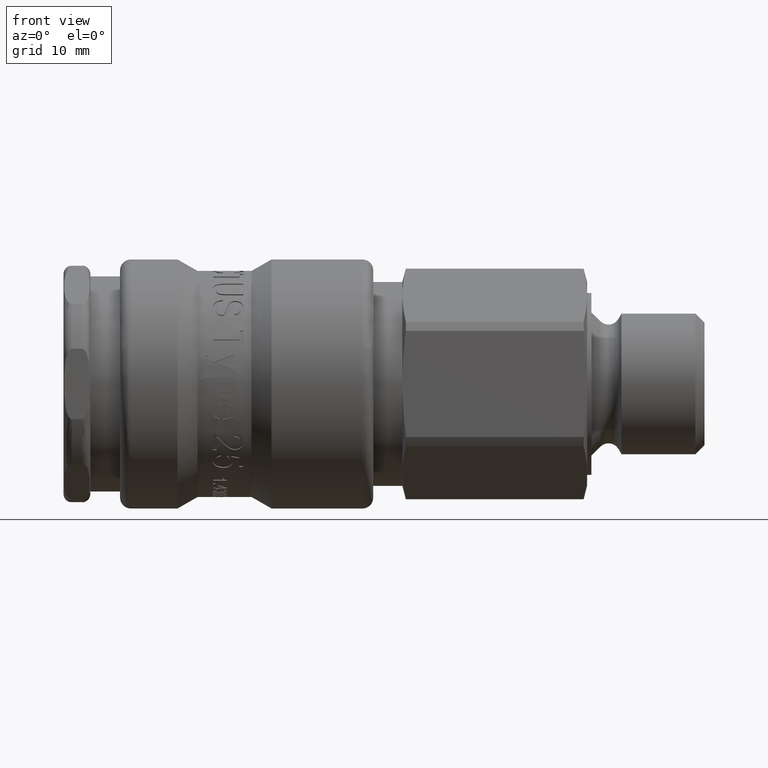
[diagram: clean part render]
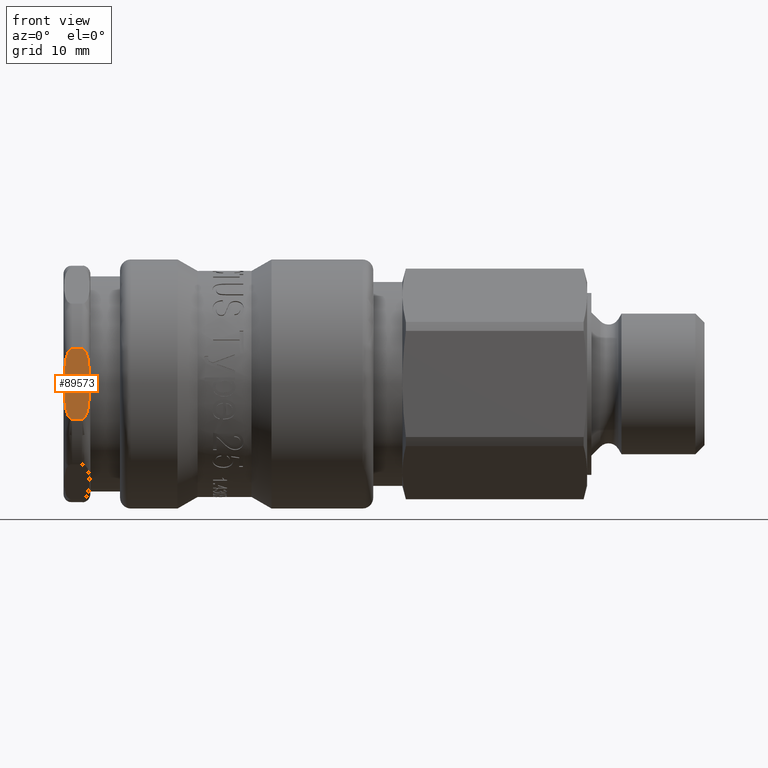
[diagram: same view with one face highlighted and labeled with its STEP entity id]
A machine part, front view. The second image highlights one B-rep face of the part: STEP entity #89573.
In plain terms, the highlighted planar face has unit normal (0, 1, 0).
Its self-contained STEP definition (entity closure, byte-faithful):
#89088=CARTESIAN_POINT('',(0.799999999999998,-10.500000000000004,-3.278719262150994));
#89089=VERTEX_POINT('',#89088);
#89097=CARTESIAN_POINT('',(0.799999999999998,-10.500000000000004,3.278719262150998));
#89098=VERTEX_POINT('',#89097);
#89099=CARTESIAN_POINT('',(0.799999999999998,-10.500000000000004,-3.278719262150994));
#89100=CARTESIAN_POINT('',(0.777895532084728,-10.500000000000004,-3.278719262150994));
#89101=CARTESIAN_POINT('',(0.75166561780548,-10.500000000000004,-3.274771300712465));
#89102=CARTESIAN_POINT('',(0.706034173954641,-10.500000000000004,-3.2613745990915));
#89103=CARTESIAN_POINT('',(0.678365053849381,-10.500000000000004,-3.248439310874959));
#89104=CARTESIAN_POINT('',(0.589002555618165,-10.500000000000004,-3.193187925023121));
#89105=CARTESIAN_POINT('',(0.527394977988849,-10.5,-3.120173886764246));
#89106=CARTESIAN_POINT('',(0.39676149208023,-10.5,-2.919047819138346));
#89107=CARTESIAN_POINT('',(0.330435911178499,-10.5,-2.738591631614819));
#89108=CARTESIAN_POINT('',(0.174245442307713,-10.5,-2.191493105213068));
#89109=CARTESIAN_POINT('',(0.126032054088558,-10.5,-1.749150668261573));
#89110=CARTESIAN_POINT('',(0.06664131136934,-10.5,-0.857870751619868));
#89111=CARTESIAN_POINT('',(0.058380151290432,-10.5,-0.408741346034068));
#89112=CARTESIAN_POINT('',(0.058380151290432,-10.5,1.748601E-015));
#89113=CARTESIAN_POINT('',(0.058380151290432,-10.5,0.408741346034072));
#89114=CARTESIAN_POINT('',(0.06664131136934,-10.5,0.857870751619872));
#89115=CARTESIAN_POINT('',(0.126032054088558,-10.5,1.749150668261577));
#89116=CARTESIAN_POINT('',(0.174245442307713,-10.5,2.191493105213072));
#89117=CARTESIAN_POINT('',(0.330435911178499,-10.5,2.738591631614822));
#89118=CARTESIAN_POINT('',(0.39676149208023,-10.5,2.91904781913835));
#89119=CARTESIAN_POINT('',(0.527394977988849,-10.5,3.12017388676425));
#89120=CARTESIAN_POINT('',(0.589002555618165,-10.500000000000004,3.193187925023124));
#89121=CARTESIAN_POINT('',(0.678365053849381,-10.500000000000004,3.248439310874962));
#89122=CARTESIAN_POINT('',(0.706034173954641,-10.500000000000004,3.261374599091504));
#89123=CARTESIAN_POINT('',(0.75166561780548,-10.500000000000004,3.274771300712468));
#89124=CARTESIAN_POINT('',(0.777895532084728,-10.5,3.278719262151005));
#89125=CARTESIAN_POINT('',(0.799999999999998,-10.5,3.278719262151005));
#89126=B_SPLINE_CURVE_WITH_KNOTS('',3,(#89099,#89100,#89101,#89102,#89103,#89104,#89105,#89106,#89107,#89108,#89109,#89110,#89111,#89112,#89113,#89114,#89115,#89116,#89117,#89118,#89119,#89120,#89121,#89122,#89123,#89124,#89125),.UNSPECIFIED.,.F.,.U.,(4,2,2,2,2,2,3,2,2,2,2,2,4),(-0.331459991565857,-0.324828651191276,-0.317192790529879,-0.293309554510366,-0.245244807620442,-0.122622403810221,0.0,0.122622403810221,0.245244807620442,0.293309554510366,0.317192790529879,0.324828651191276,0.331459991565857),.UNSPECIFIED.);
#89127=EDGE_CURVE('',#89089,#89098,#89126,.T.);
#89242=CARTESIAN_POINT('',(1.7,-10.500000000000004,-3.278719262150994));
#89243=VERTEX_POINT('',#89242);
#89251=CARTESIAN_POINT('',(1.7,-10.500000000000004,-3.278719262150994));
#89252=DIRECTION('',(-1.0,0.0,0.0));
#89253=VECTOR('',#89252,0.900000000000002);
#89254=LINE('',#89251,#89253);
#89255=EDGE_CURVE('',#89243,#89089,#89254,.T.);
#89266=CARTESIAN_POINT('',(1.7,-10.500000000000004,3.278719262150998));
#89267=VERTEX_POINT('',#89266);
#89268=CARTESIAN_POINT('',(0.799999999999998,-10.500000000000004,3.278719262150998));
#89269=DIRECTION('',(1.0,0.0,0.0));
#89270=VECTOR('',#89269,0.900000000000002);
#89271=LINE('',#89268,#89270);
#89272=EDGE_CURVE('',#89098,#89267,#89271,.T.);
#89472=CARTESIAN_POINT('',(1.7,-10.5,3.278719262151005));
#89473=CARTESIAN_POINT('',(1.722104467915271,-10.5,3.278719262151005));
#89474=CARTESIAN_POINT('',(1.748334382194518,-10.500000000000004,3.274771300712468));
#89475=CARTESIAN_POINT('',(1.793965826045357,-10.500000000000004,3.261374599091504));
#89476=CARTESIAN_POINT('',(1.821634946150617,-10.500000000000004,3.248439310874962));
#89477=CARTESIAN_POINT('',(1.910997444381834,-10.500000000000004,3.193187925023124));
#89478=CARTESIAN_POINT('',(1.972605022011149,-10.500000000000004,3.12017388676425));
#89479=CARTESIAN_POINT('',(2.103238507919768,-10.500000000000004,2.91904781913835));
#89480=CARTESIAN_POINT('',(2.169564088821498,-10.500000000000004,2.738591631614822));
#89481=CARTESIAN_POINT('',(2.325754557692284,-10.500000000000004,2.191493105213072));
#89482=CARTESIAN_POINT('',(2.373967945911441,-10.500000000000004,1.749150668261577));
#89483=CARTESIAN_POINT('',(2.433358688630659,-10.500000000000004,0.857870751619872));
#89484=CARTESIAN_POINT('',(2.441619848709565,-10.500000000000004,0.408741346034072));
#89485=CARTESIAN_POINT('',(2.441619848709565,-10.500000000000004,-0.408741346034069));
#89486=CARTESIAN_POINT('',(2.433358688630659,-10.500000000000004,-0.857870751619869));
#89487=CARTESIAN_POINT('',(2.373967945911441,-10.500000000000004,-1.749150668261574));
#89488=CARTESIAN_POINT('',(2.325754557692284,-10.500000000000004,-2.191493105213069));
#89489=CARTESIAN_POINT('',(2.169564088821498,-10.500000000000004,-2.738591631614819));
#89490=CARTESIAN_POINT('',(2.103238507919768,-10.500000000000004,-2.919047819138347));
#89491=CARTESIAN_POINT('',(1.972605022011149,-10.500000000000004,-3.120173886764246));
#89492=CARTESIAN_POINT('',(1.910997444381833,-10.500000000000004,-3.193187925023121));
#89493=CARTESIAN_POINT('',(1.821634946150617,-10.500000000000004,-3.248439310874959));
#89494=CARTESIAN_POINT('',(1.793965826045357,-10.500000000000004,-3.2613745990915));
#89495=CARTESIAN_POINT('',(1.748334382194518,-10.500000000000004,-3.274771300712465));
#89496=CARTESIAN_POINT('',(1.72210446791527,-10.500000000000004,-3.278719262150994));
#89497=CARTESIAN_POINT('',(1.7,-10.500000000000004,-3.278719262150994));
#89498=B_SPLINE_CURVE_WITH_KNOTS('',3,(#89472,#89473,#89474,#89475,#89476,#89477,#89478,#89479,#89480,#89481,#89482,#89483,#89484,#89485,#89486,#89487,#89488,#89489,#89490,#89491,#89492,#89493,#89494,#89495,#89496,#89497),.UNSPECIFIED.,.F.,.U.,(4,2,2,2,2,2,2,2,2,2,2,2,4),(0.331459991565857,0.338091331940438,0.345727192601835,0.369610428621348,0.417675175511271,0.540297579321493,0.662919983131714,0.785542386941935,0.908164790752156,0.956229537642079,0.980112773661593,0.987748634322989,0.994379974697571),.UNSPECIFIED.);
#89499=EDGE_CURVE('',#89267,#89243,#89498,.T.);
#89562=CARTESIAN_POINT('',(3.793341251028509,-10.500000000000004,1.665335E-015));
#89563=DIRECTION('',(0.0,1.0,0.0));
#89564=DIRECTION('',(0.0,0.0,1.0));
#89565=AXIS2_PLACEMENT_3D('',#89562,#89563,#89564);
#89566=PLANE('',#89565);
#89567=ORIENTED_EDGE('',*,*,#89127,.F.);
#89568=ORIENTED_EDGE('',*,*,#89255,.F.);
#89569=ORIENTED_EDGE('',*,*,#89499,.F.);
#89570=ORIENTED_EDGE('',*,*,#89272,.F.);
#89571=EDGE_LOOP('',(#89567,#89568,#89569,#89570));
#89572=FACE_OUTER_BOUND('',#89571,.T.);
#89573=ADVANCED_FACE('',(#89572),#89566,.F.);